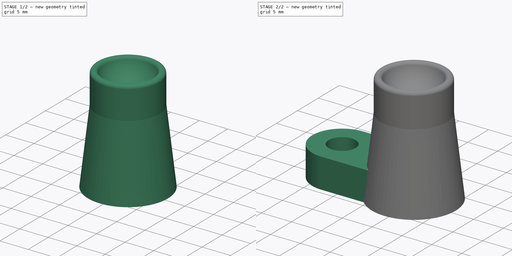
[diagram: build sequence overview — one tinted view per stage of 2, left to right]
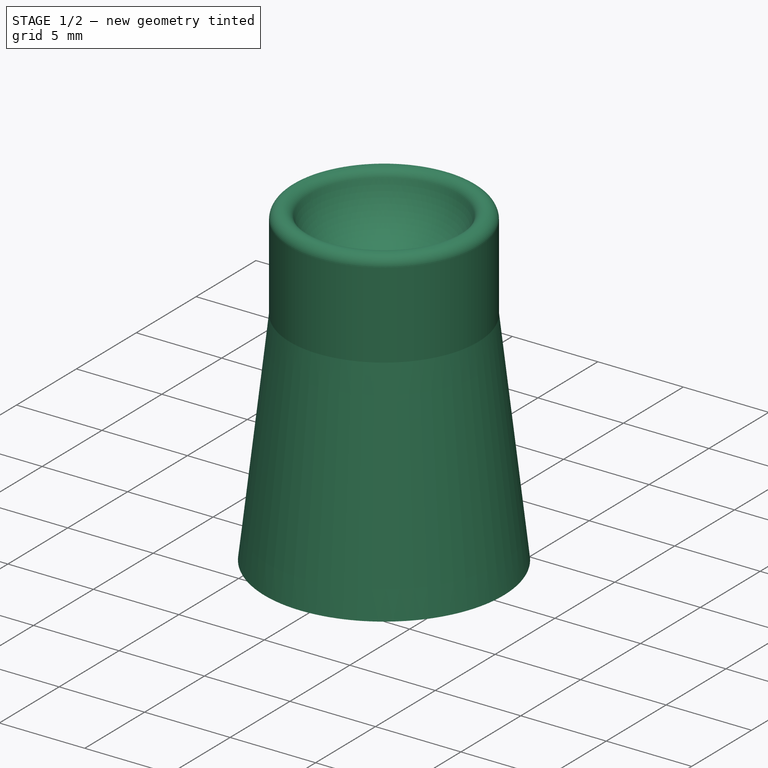
[diagram: stage 1 of 2 — iso view after this stage's code; geometry added in this stage tinted green]
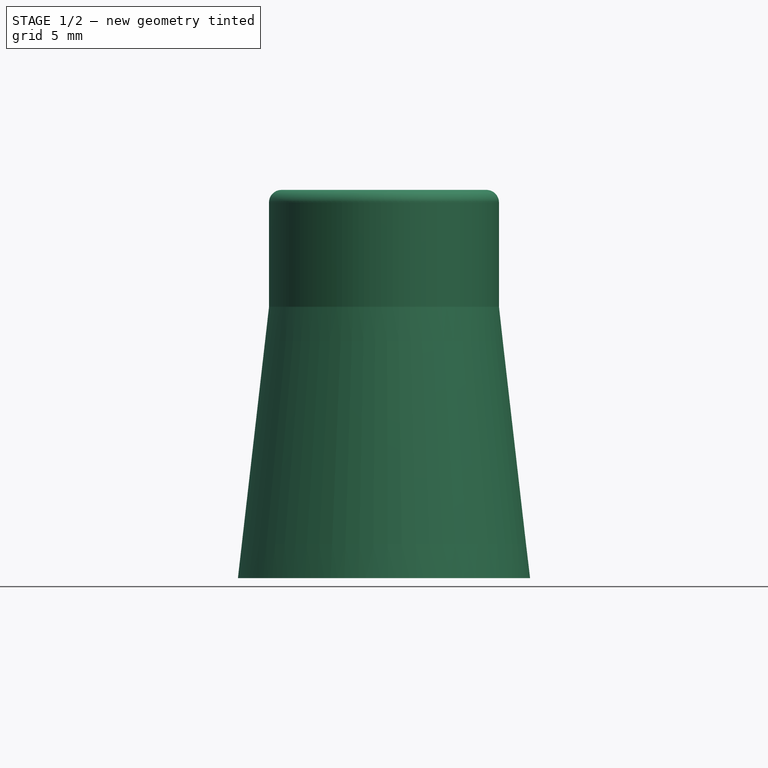
[diagram: stage 1 of 2 — front view after this stage's code; geometry added in this stage tinted green]
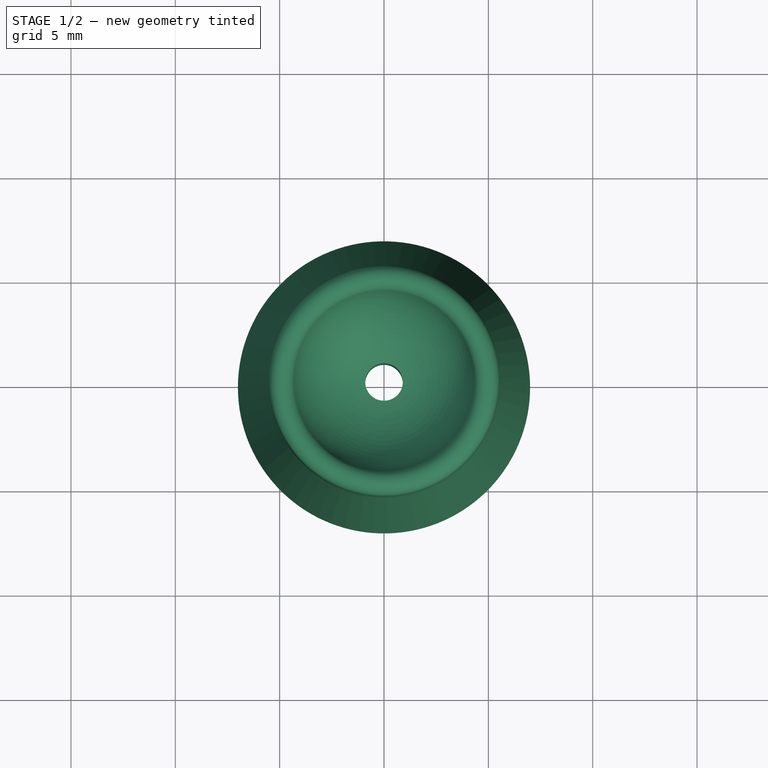
[diagram: stage 1 of 2 — top view after this stage's code; geometry added in this stage tinted green]
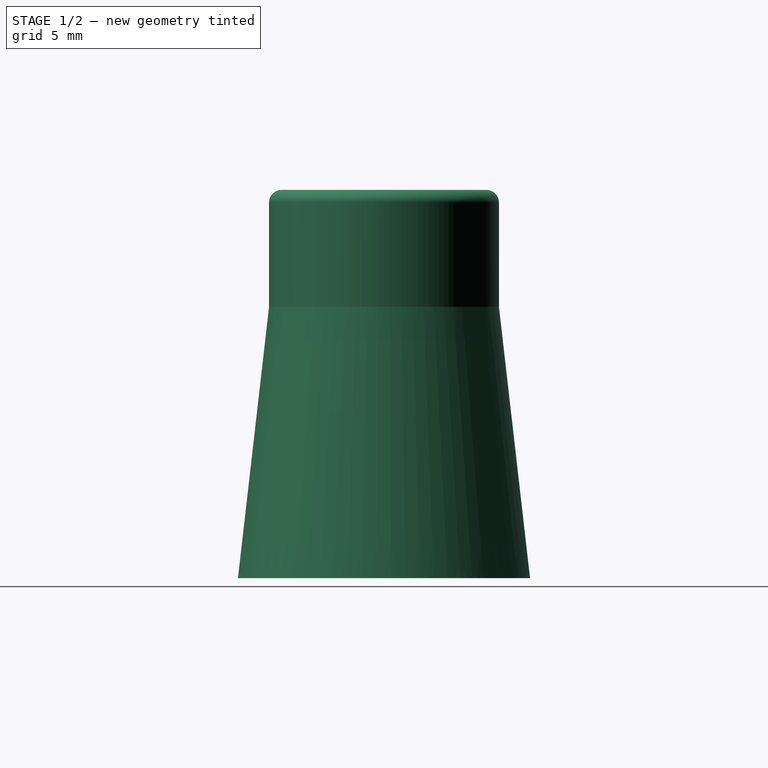
[diagram: stage 1 of 2 — right view after this stage's code; geometry added in this stage tinted green]
FCSTD DOCUMENT  (FreeCAD 0.22R33837 (Git))
Label: Treadmill_Sphere_Holder_9mm
License: All rights reserved
LicenseURL: http://en.wikipedia.org/wiki/All_rights_reserved
objects: Sketcher::SketchObject×3, App::MeasureDistance×2, PartDesign::Revolution×1, PartDesign::Plane×1, PartDesign::Hole×1, PartDesign::Pad×1, PartDesign::Body×1
note: 11 computed .brp shape members not serialized (recipe doc carries the construction recipe); baked Part::Feature solids carry a one-line shape summary decoded from their .brp

FEATURE [Sketcher::SketchObject] Sketch  label="Revolution tube cross section"
  FullyConstrained = true
  MapMode = 5
  Placement = pos=(0,0,0) rot=(1,0,0;1.5708rad)
  Support = -> [XZ_Plane]
  sketch-geometry (8):
    g0: LineSegment StartX=-0.9 StartY=0 StartZ=0 EndX=-0.9 EndY=14.9725 EndZ=0
    g1: LineSegment StartX=-0.9 StartY=0 StartZ=0 EndX=-7 EndY=0 EndZ=0
    g2: ArcOfCircle CenterX=0 CenterY=19.3816 CenterZ=0 NormalX=0 NormalY=0 NormalZ=1 AngleXU=0 Radius=4.5 StartAngle=3.41593 EndAngle=4.51103
    g3: ArcOfCircle CenterX=0 CenterY=19.3816 CenterZ=0 NormalX=0 NormalY=0 NormalZ=1 AngleXU=0 Radius=4.5 StartAngle=3.41593 EndAngle=4.71239
    g4: ArcOfCircle CenterX=-4.90929 CenterY=18 CenterZ=0 NormalX=0 NormalY=0 NormalZ=1 AngleXU=0 Radius=0.6 StartAngle=0.274335 EndAngle=3.14159
    g5: GeomPoint X=-5.5 Y=0 Z=0
    g6: LineSegment StartX=-5.50929 StartY=13 StartZ=0 EndX=-5.50929 EndY=18 EndZ=0
    g7: LineSegment StartX=-5.50929 StartY=13 StartZ=0 EndX=-7 EndY=0 EndZ=0
  constraints (23):
    c: PointOnObject(g0,g-1)
    c: Vertical(g0)
    c: Coincident(g0,g1)
    c: PointOnObject(g5,g-1)
    c: PointOnObject(g2,g-2)
    c: Coincident(g2,g0)
    c: DistanceX(g5,g-1) = 5.5
    c: DistanceX(g0,g-1) = 0.9
    c: Coincident(g3,g2)
    c: PointOnObject(g3,g-2)
    c: Coincident(g2,g3)
    c: Tangent(g4,g2) = 1.5708
    c: DistanceY(g0,g2) = 3.19
    c: DistanceY(g-1,g6) = 18
    c: PointOnObject(g5,g1)
    c: Diameter(g2) = 9
    c: Vertical(g6)
    c: Radius(g4) = 0.6
    c: Coincident(g7,g6)
    c: Coincident(g7,g1)
    c: DistanceY(g-1,g6) = 13
    c: DistanceX(g1,g-1) = 7
    c: Tangent(g4,g6) = 1.5708
FEATURE [PartDesign::Revolution] Revolution  label="Tube"
  Angle = 360
  Axis = (0,-2e-16,1)
  Base = (0,0,0)
  Placement = pos=(0,0,0) rot=(1,0,0;1.5708rad)
  Profile = -> Sketch
  ReferenceAxis = -> Sketch [V_Axis]
FEATURE [PartDesign::Plane] DatumPlane
  Length = 60
  MapMode = 5
  ResizeMode = 0
  Support = -> [XY_Plane]
  Width = 60
FEATURE [Sketcher::SketchObject] Sketch008
  FullyConstrained = true
  MapMode = 5
  Support = -> [DatumPlane]
  sketch-geometry (1):
    g0: Circle CenterX=0 CenterY=0 CenterZ=0 NormalX=0 NormalY=0 NormalZ=1 AngleXU=0 Radius=4.7625
  constraints (2):
    c: Coincident(g0,g-1)
    c: Radius(g0) = 4.7625
FEATURE [PartDesign::Hole] Hole002
  BaseFeature = -> Revolution
  CustomThreadClearance = 0
  Depth = 8
  DepthType = 0
  Diameter = 8.5
  DrillForDepth = false
  DrillPoint = 1
  DrillPointAngle = 118
  HoleCutCountersinkAngle = 90
  HoleCutCustomValues = false
  HoleCutDepth = 0
  HoleCutDiameter = 0
  HoleCutType = 0
  ModelThread = false
  Placement = pos=(0,0,0) rot=(1,0,0;1.5708rad)
  Profile = -> Sketch008
  Reversed = true
  Tapered = false
  TaperedAngle = 90
  ThreadClass = 0
  ThreadDepth = 8
  ThreadDepthType = 0
  ThreadDirection = 0
  ThreadFit = 0
  ThreadSize = 12
  ThreadType = 4
  Threaded = true
  UseCustomThreadClearance = false
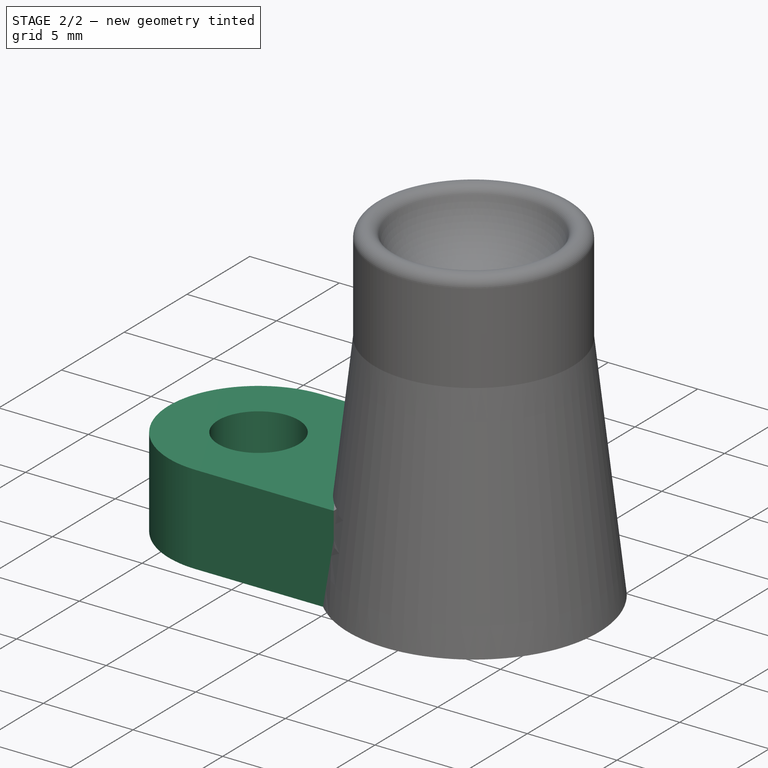
[diagram: stage 2 of 2 — iso view after this stage's code; geometry added in this stage tinted green]
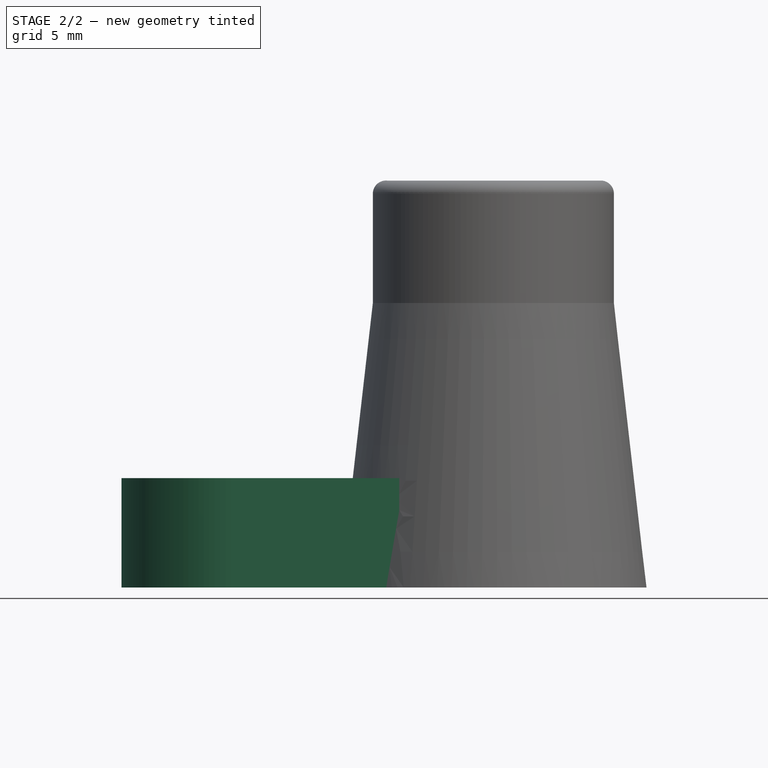
[diagram: stage 2 of 2 — front view after this stage's code; geometry added in this stage tinted green]
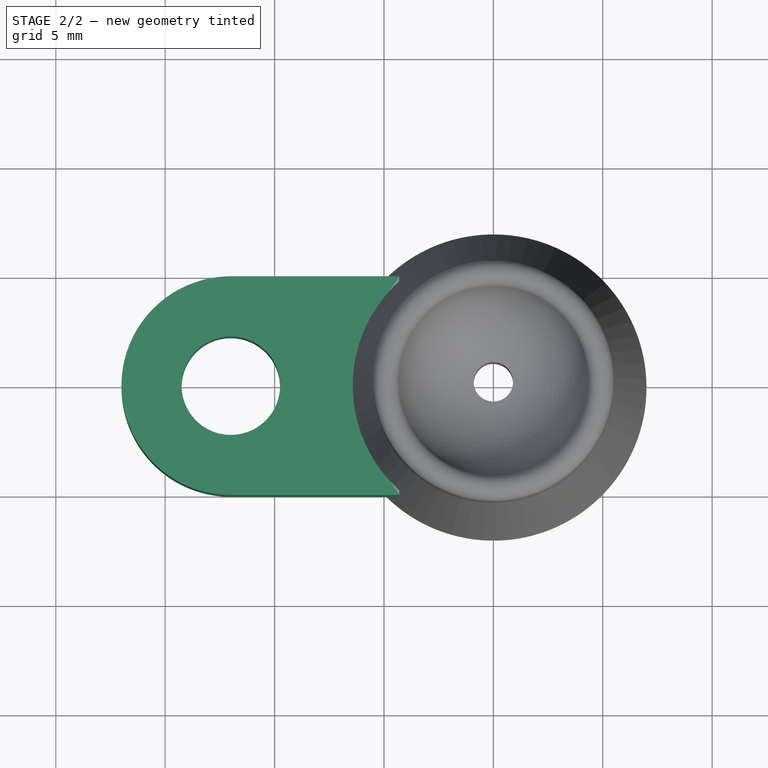
[diagram: stage 2 of 2 — top view after this stage's code; geometry added in this stage tinted green]
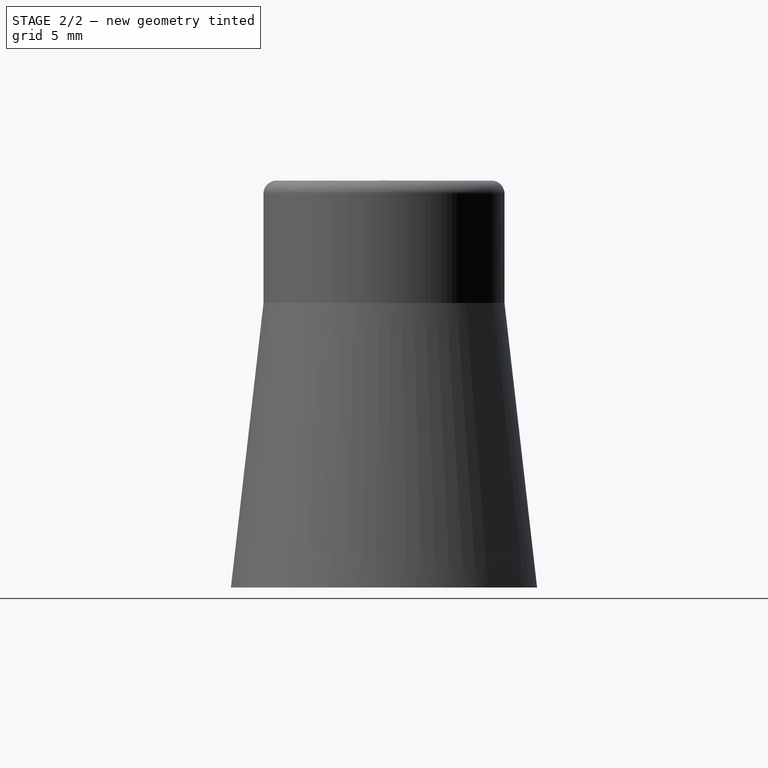
[diagram: stage 2 of 2 — right view after this stage's code; geometry added in this stage tinted green]
FEATURE [Sketcher::SketchObject] Sketch009
  FullyConstrained = true
  MapMode = 5
  Support = -> [DatumPlane]
  sketch-geometry (5):
    g0: LineSegment StartX=-4.3 StartY=5 StartZ=0 EndX=-12 EndY=5 EndZ=0
    g1: LineSegment StartX=-12 StartY=-5 StartZ=0 EndX=-4.3 EndY=-5 EndZ=0
    g2: LineSegment StartX=-4.3 StartY=-5 StartZ=0 EndX=-4.3 EndY=5 EndZ=0
    g3: ArcOfCircle CenterX=-12 CenterY=0 CenterZ=0 NormalX=0 NormalY=0 NormalZ=1 AngleXU=0 Radius=5 StartAngle=1.5708 EndAngle=4.71239
    g4: Circle CenterX=-12 CenterY=0 CenterZ=0 NormalX=0 NormalY=0 NormalZ=1 AngleXU=0 Radius=2.25
  constraints (14):
    c: Coincident(g1,g2)
    c: Coincident(g2,g0)
    c: Horizontal(g0)
    c: Horizontal(g1)
    c: Symmetric(g0,g1,g-1)
    c: PointOnObject(g3,g-1)
    c: Coincident(g3,g1)
    c: Tangent(g3,g0) = -1.5708
    c: Distance(g1,g0) = 10
    c: DistanceX(g1,g-1) = 4.3
    c: Coincident(g4,g3)
    c: Radius(g4) = 2.25
    c: DistanceY(g-1,g-1) = 0
    c: DistanceX(g3,g-1) = 12
FEATURE [PartDesign::Pad] Pad002
  BaseFeature = -> Hole002
  Direction = (0,0,1)
  Length = 5
  Length2 = 10
  Placement = pos=(0,0,0) rot=(1,0,0;1.5708rad)
  Profile = -> Sketch009
  ReferenceAxis = -> Sketch009 [N_Axis]
  Type = 0
FEATURE [PartDesign::Body] Body  label="SphereTube"
  Group = -> [Sketch,Revolution,DatumPlane,Sketch008,Hole002,Sketch009,Pad002]
  Origin = -> Origin
  Tip = -> Pad002
FEATURE [App::MeasureDistance] Distance  label="Distance: 23.00 mm"
  Distance = 23.0022
  P1 = (5.9361,3.70981,4.42244e-07)
  P2 = (-17.0553,3.00479,0)
FEATURE [App::MeasureDistance] Distance001  label="Distance: 18.09 mm"
  Distance = 18.0891
  P1 = (-3.01023,6.32324,-7.1e-15)
  P2 = (-3.12963,4.53405,18)
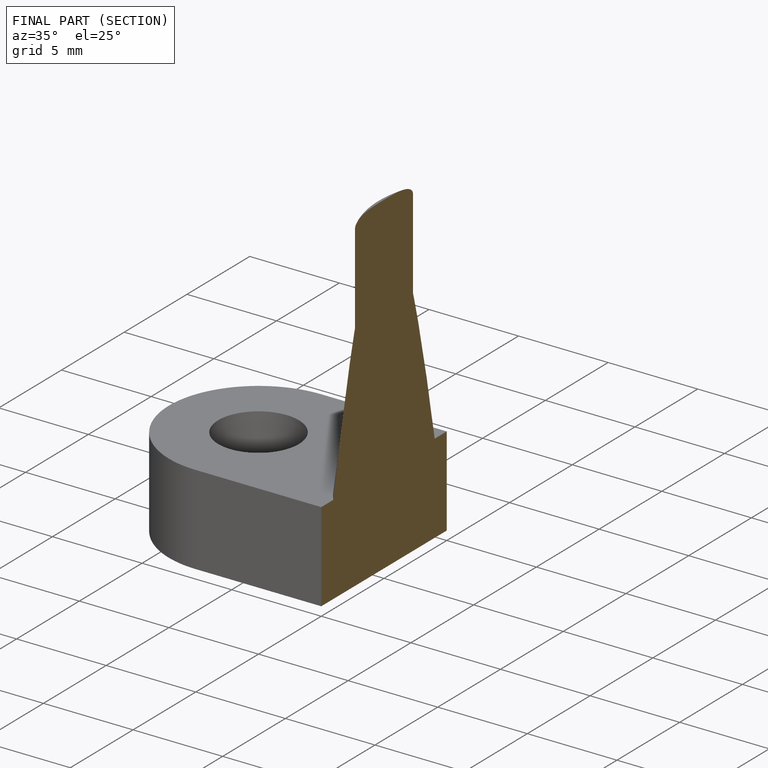
[diagram: finished part — half-section view (interior)]
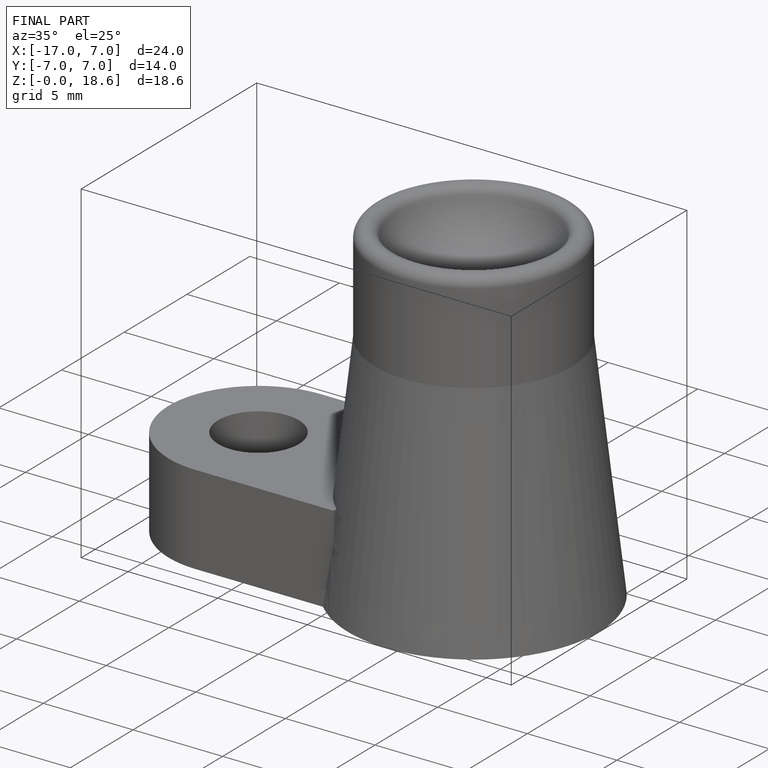
[diagram: finished part — iso view with bounding-box wireframe]
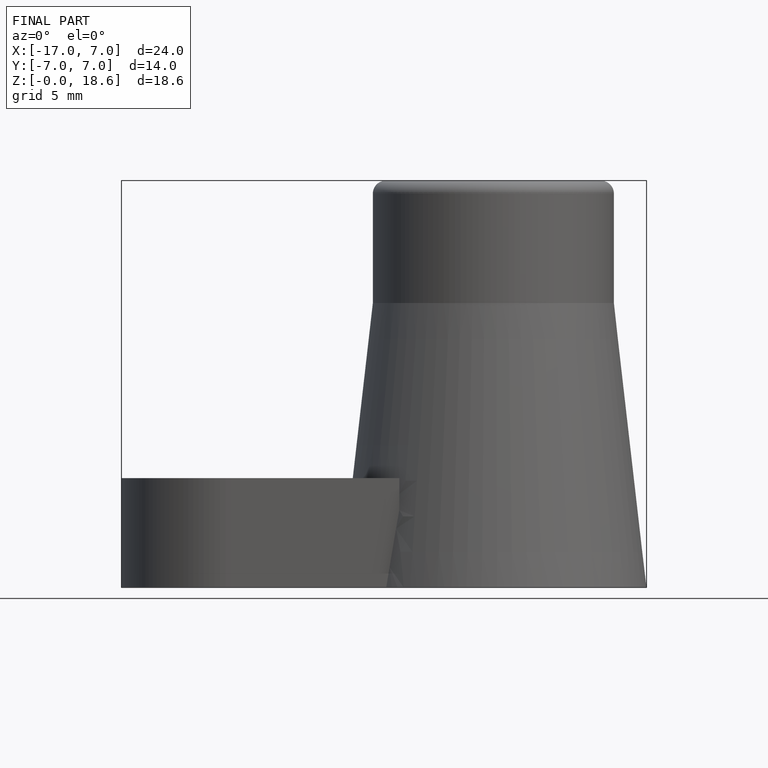
[diagram: finished part — front view with bounding-box wireframe]
